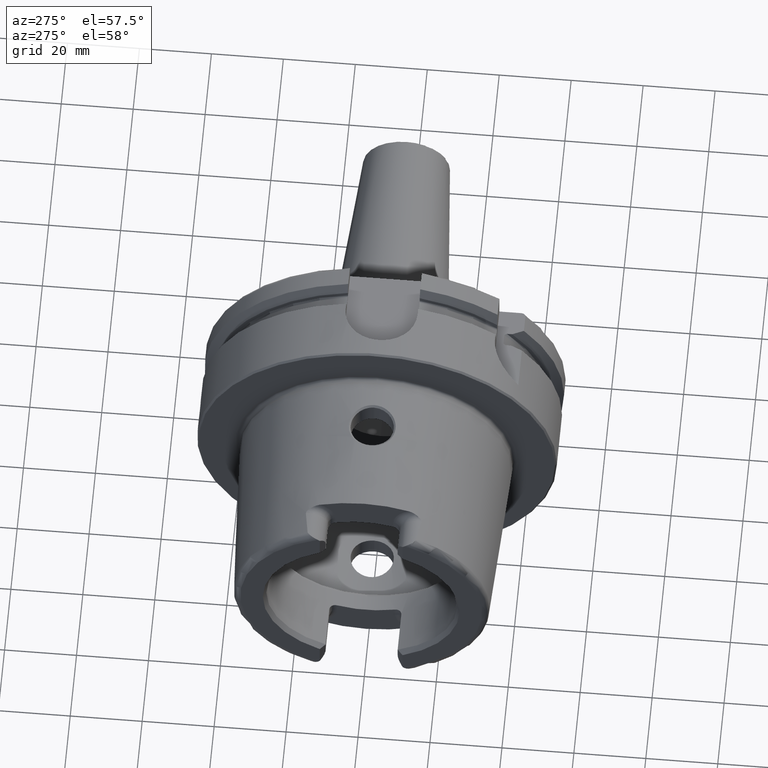
[diagram: clean part render]
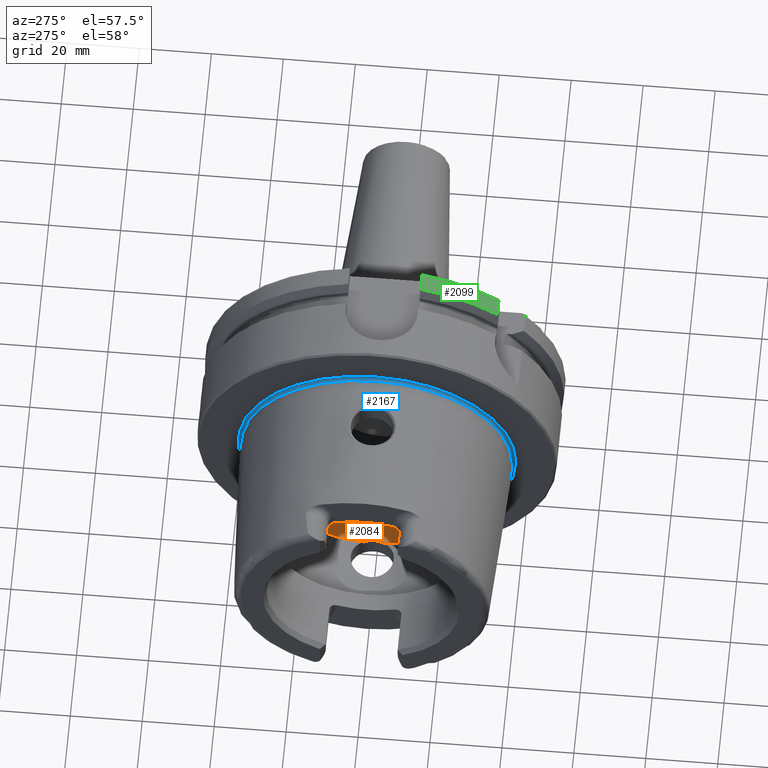
[diagram: same view with three faces highlighted in distinct colors, each labeled with its STEP entity id]
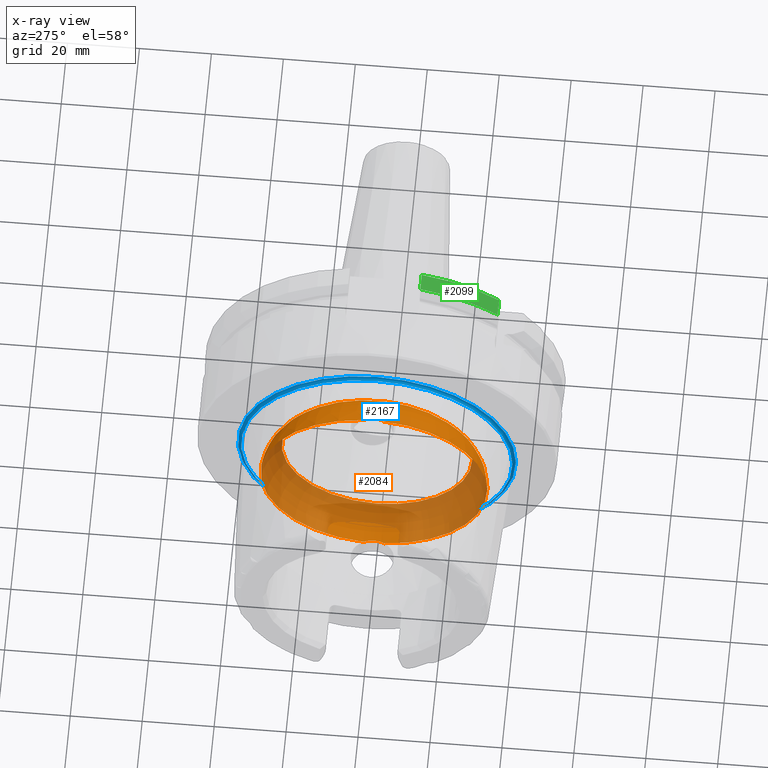
[diagram: x-ray of the same camera — body ghosted, the three highlighted faces saturated]
A machine part, auxiliary view with three faces highlighted in distinct colors.
The next image is the same camera in x-ray (body ghosted, the three faces saturated) — at least one of them is partly hidden behind the body in this view.
Their STEP definitions:

[orange] entity #2084 — the highlighted toroidal blend (fillet) surface has major radius 19.5 mm and minor (blend) radius 12 mm.
#48=B_SPLINE_CURVE_WITH_KNOTS('',3,(#3712,#3713,#3714,#3715,#3716,#3717,
#3718,#3719,#3720,#3721),.UNSPECIFIED.,.F.,.F.,(4,2,2,2,4),(-0.606113644645353,
-0.532141714710631,-0.407956541554012,-0.344441109025195,-0.303157612487306),
 .UNSPECIFIED.);
#50=B_SPLINE_CURVE_WITH_KNOTS('',3,(#3754,#3755,#3756,#3757,#3758,#3759,
#3760,#3761,#3762,#3763),.UNSPECIFIED.,.F.,.F.,(4,2,2,2,4),(-0.303157612487306,
-0.297161587155601,-0.247817233363509,-0.174446982686599,0.),
 .UNSPECIFIED.);
#53=B_SPLINE_CURVE_WITH_KNOTS('',3,(#3904,#3905,#3906,#3907,#3908,#3909,
#3910,#3911,#3912,#3913),.UNSPECIFIED.,.F.,.F.,(4,2,2,2,4),(-0.606113644645388,
-0.532141714710621,-0.407956541553997,-0.344441109025146,-0.303157612487227),
 .UNSPECIFIED.);
#55=B_SPLINE_CURVE_WITH_KNOTS('',3,(#3946,#3947,#3948,#3949,#3950,#3951,
#3952,#3953,#3954,#3955),.UNSPECIFIED.,.F.,.F.,(4,2,2,2,4),(-0.303157612487227,
-0.297161587155532,-0.247817233363497,-0.174446982686607,0.),
 .UNSPECIFIED.);
#143=TOROIDAL_SURFACE('',#2296,19.5,12.);
#254=FACE_OUTER_BOUND('',#387,.T.);
#387=EDGE_LOOP('',(#1587,#1588,#1589,#1590,#1591,#1592,#1593,#1594,#1595,
#1596,#1597));
#744=CIRCLE('',#2291,31.5);
#747=CIRCLE('',#2294,31.5);
#748=CIRCLE('',#2295,31.5);
#749=CIRCLE('',#2297,26.5);
#750=CIRCLE('',#2298,26.5);
#751=CIRCLE('',#2299,12.);
#925=VERTEX_POINT('',#3709);
#926=VERTEX_POINT('',#3711);
#927=VERTEX_POINT('',#3722);
#930=VERTEX_POINT('',#3902);
#931=VERTEX_POINT('',#3903);
#932=VERTEX_POINT('',#3914);
#933=VERTEX_POINT('',#3958);
#936=VERTEX_POINT('',#3968);
#937=VERTEX_POINT('',#3969);
#1168=EDGE_CURVE('',#926,#925,#48,.T.);
#1170=EDGE_CURVE('',#925,#927,#50,.T.);
#1174=EDGE_CURVE('',#930,#931,#53,.T.);
#1176=EDGE_CURVE('',#931,#932,#55,.T.);
#1178=EDGE_CURVE('',#933,#930,#744,.T.);
#1182=EDGE_CURVE('',#927,#933,#747,.T.);
#1183=EDGE_CURVE('',#932,#926,#748,.T.);
#1184=EDGE_CURVE('',#936,#937,#749,.T.);
#1185=EDGE_CURVE('',#937,#936,#750,.T.);
#1186=EDGE_CURVE('',#937,#925,#751,.T.);
#1587=ORIENTED_EDGE('',*,*,#1184,.F.);
#1588=ORIENTED_EDGE('',*,*,#1185,.F.);
#1589=ORIENTED_EDGE('',*,*,#1186,.T.);
#1590=ORIENTED_EDGE('',*,*,#1170,.T.);
#1591=ORIENTED_EDGE('',*,*,#1182,.T.);
#1592=ORIENTED_EDGE('',*,*,#1178,.T.);
#1593=ORIENTED_EDGE('',*,*,#1174,.T.);
#1594=ORIENTED_EDGE('',*,*,#1176,.T.);
#1595=ORIENTED_EDGE('',*,*,#1183,.T.);
#1596=ORIENTED_EDGE('',*,*,#1168,.T.);
#1597=ORIENTED_EDGE('',*,*,#1186,.F.);
#2084=ADVANCED_FACE('',(#254),#143,.F.);
#2291=AXIS2_PLACEMENT_3D('',#3959,#2709,#2710);
#2294=AXIS2_PLACEMENT_3D('',#3965,#2716,#2717);
#2295=AXIS2_PLACEMENT_3D('',#3966,#2718,#2719);
#2296=AXIS2_PLACEMENT_3D('',#3967,#2720,#2721);
#2297=AXIS2_PLACEMENT_3D('',#3970,#2722,#2723);
#2298=AXIS2_PLACEMENT_3D('',#3971,#2724,#2725);
#2299=AXIS2_PLACEMENT_3D('',#3972,#2726,#2727);
#2709=DIRECTION('center_axis',(-1.,0.,0.));
#2710=DIRECTION('ref_axis',(0.,0.,1.));
#2716=DIRECTION('center_axis',(-1.,0.,0.));
#2717=DIRECTION('ref_axis',(0.,0.,1.));
#2718=DIRECTION('center_axis',(-1.,0.,0.));
#2719=DIRECTION('ref_axis',(0.,0.,1.));
#2720=DIRECTION('center_axis',(-1.,0.,0.));
#2721=DIRECTION('ref_axis',(0.,0.,1.));
#2722=DIRECTION('center_axis',(-1.,0.,0.));
#2723=DIRECTION('ref_axis',(0.,0.,1.));
#2724=DIRECTION('center_axis',(-1.,0.,0.));
#2725=DIRECTION('ref_axis',(0.,0.,1.));
#2726=DIRECTION('center_axis',(0.,1.,-1.22464679914735E-16));
#2727=DIRECTION('ref_axis',(0.,-1.22464679914735E-16,-1.));
#3709=CARTESIAN_POINT('',(-9.,8.53116613017712E-16,-31.4767398822284));
#3711=CARTESIAN_POINT('',(-9.74679434480896,2.89893607109041,-31.3663222207471));
#3712=CARTESIAN_POINT('Ctrl Pts',(-9.74679434480898,2.89893607109041,-31.3663222207471));
#3713=CARTESIAN_POINT('Ctrl Pts',(-9.62803941549252,2.68373847757038,-31.3862111979079));
#3714=CARTESIAN_POINT('Ctrl Pts',(-9.52250794022164,2.46123932380009,-31.4027818190648));
#3715=CARTESIAN_POINT('Ctrl Pts',(-9.27707880675082,1.84905941644996,-31.4398086116956));
#3716=CARTESIAN_POINT('Ctrl Pts',(-9.16318715371328,1.45014848778478,-31.4552463037839));
#3717=CARTESIAN_POINT('Ctrl Pts',(-9.05448554629564,0.83406948853474,-31.4697090180031));
#3718=CARTESIAN_POINT('Ctrl Pts',(-9.02875508102837,0.623753972628784,-31.4730355369691));
#3719=CARTESIAN_POINT('Ctrl Pts',(-9.00473516300901,0.275210595137741,-31.4761342948647));
#3720=CARTESIAN_POINT('Ctrl Pts',(-9.,0.13762179988616,-31.4767398822284));
#3721=CARTESIAN_POINT('Ctrl Pts',(-9.,9.71445146547012E-16,-31.4767398822284));
#3722=CARTESIAN_POINT('',(-9.74679434480896,-2.89893607109041,-31.3663222207471));
#3754=CARTESIAN_POINT('Ctrl Pts',(-9.,9.83483832277069E-16,-31.4767398822284));
#3755=CARTESIAN_POINT('Ctrl Pts',(-9.,-0.0199882245331354,-31.4767398822284));
#3756=CARTESIAN_POINT('Ctrl Pts',(-9.00009988237686,-0.0399771452902417,
-31.4767270717783));
#3757=CARTESIAN_POINT('Ctrl Pts',(-9.00194380057016,-0.224464346212316,
-31.4764905359115));
#3758=CARTESIAN_POINT('Ctrl Pts',(-9.01035297969853,-0.388827878343727,
-31.4754151841588));
#3759=CARTESIAN_POINT('Ctrl Pts',(-9.0480310904853,-0.796171644009328,-31.4705320701686));
#3760=CARTESIAN_POINT('Ctrl Pts',(-9.08543037238412,-1.03809779370842,-31.4656619259797));
#3761=CARTESIAN_POINT('Ctrl Pts',(-9.26119500081336,-1.84501079512327,-31.441850680052));
#3762=CARTESIAN_POINT('Ctrl Pts',(-9.4667592962906,-2.39148034786879,-31.4132222586341));
#3763=CARTESIAN_POINT('Ctrl Pts',(-9.74679434480898,-2.89893607109041,-31.3663222207471));
#3902=CARTESIAN_POINT('',(-9.74679434480896,-2.89893607109042,31.3663222207471));
#3903=CARTESIAN_POINT('',(-8.99999999999999,7.8372767397864E-16,31.4767398822284));
#3904=CARTESIAN_POINT('Ctrl Pts',(-9.74679434480898,-2.89893607109042,31.3663222207471));
#3905=CARTESIAN_POINT('Ctrl Pts',(-9.62803941549257,-2.6837384775705,31.3862111979079));
#3906=CARTESIAN_POINT('Ctrl Pts',(-9.52250794022172,-2.46123932380032,31.4027818190648));
#3907=CARTESIAN_POINT('Ctrl Pts',(-9.27707880675083,-1.84905941645004,31.4398086116956));
#3908=CARTESIAN_POINT('Ctrl Pts',(-9.16318715371328,-1.45014848778485,31.4552463037839));
#3909=CARTESIAN_POINT('Ctrl Pts',(-9.05448554629561,-0.834069488534672,
31.4697090180031));
#3910=CARTESIAN_POINT('Ctrl Pts',(-9.02875508102836,-0.623753972628598,
31.4730355369691));
#3911=CARTESIAN_POINT('Ctrl Pts',(-9.00473516300902,-0.275210595137865,
31.4761342948647));
#3912=CARTESIAN_POINT('Ctrl Pts',(-8.99999999999999,-0.137621799886392,
31.4767398822284));
#3913=CARTESIAN_POINT('Ctrl Pts',(-8.99999999999999,9.0205620750794E-16,
31.4767398822284));
#3914=CARTESIAN_POINT('',(-9.74679434480896,2.89893607109042,31.3663222207471));
#3946=CARTESIAN_POINT('Ctrl Pts',(-8.99999999999999,8.7920239009422E-16,
31.4767398822284));
#3947=CARTESIAN_POINT('Ctrl Pts',(-8.99999999999999,0.0199882245331231,
31.4767398822284));
#3948=CARTESIAN_POINT('Ctrl Pts',(-9.00009988237684,0.0399771452902225,
31.4767270717783));
#3949=CARTESIAN_POINT('Ctrl Pts',(-9.00194380057014,0.224464346212396,31.4764905359115));
#3950=CARTESIAN_POINT('Ctrl Pts',(-9.01035297969852,0.388827878343765,31.4754151841588));
#3951=CARTESIAN_POINT('Ctrl Pts',(-9.0480310904853,0.79617164400948,31.4705320701686));
#3952=CARTESIAN_POINT('Ctrl Pts',(-9.08543037238414,1.03809779370849,31.4656619259797));
#3953=CARTESIAN_POINT('Ctrl Pts',(-9.26119500081334,1.84501079512323,31.441850680052));
#3954=CARTESIAN_POINT('Ctrl Pts',(-9.46675929629059,2.39148034786878,31.4132222586341));
#3955=CARTESIAN_POINT('Ctrl Pts',(-9.74679434480898,2.89893607109043,31.3663222207471));
#3958=CARTESIAN_POINT('',(-9.74679434480896,-31.5,3.85763741731416E-15));
#3959=CARTESIAN_POINT('Origin',(-9.74679434480896,0.,0.));
#3965=CARTESIAN_POINT('Origin',(-9.74679434480896,0.,0.));
#3966=CARTESIAN_POINT('Origin',(-9.74679434480896,0.,0.));
#3967=CARTESIAN_POINT('Origin',(-9.74679434480896,0.,0.));
#3968=CARTESIAN_POINT('',(0.,-26.5,3.24531401774049E-15));
#3969=CARTESIAN_POINT('',(0.,-3.24531401774049E-15,-26.5));
#3970=CARTESIAN_POINT('Origin',(0.,0.,0.));
#3971=CARTESIAN_POINT('Origin',(0.,0.,0.));
#3972=CARTESIAN_POINT('Origin',(-9.74679434480896,-2.38806125833734E-15,
-19.5));

[blue] entity #2167 — the highlighted toroidal blend (fillet) surface has major radius 38.5073 mm and minor (blend) radius 0.8 mm.
#165=TOROIDAL_SURFACE('',#2462,38.5073016032064,0.8);
#337=FACE_OUTER_BOUND('',#475,.T.);
#475=EDGE_LOOP('',(#2021,#2022,#2023,#2024,#2025,#2026));
#819=CIRCLE('',#2438,38.6186400839745);
#820=CIRCLE('',#2439,38.6186400839745);
#830=CIRCLE('',#2460,37.7073016032064);
#831=CIRCLE('',#2461,37.7073016032064);
#832=CIRCLE('',#2463,0.8);
#1039=VERTEX_POINT('',#4626);
#1040=VERTEX_POINT('',#4627);
#1044=VERTEX_POINT('',#4656);
#1045=VERTEX_POINT('',#4657);
#1355=EDGE_CURVE('',#1039,#1040,#819,.T.);
#1356=EDGE_CURVE('',#1040,#1039,#820,.T.);
#1369=EDGE_CURVE('',#1044,#1045,#830,.T.);
#1371=EDGE_CURVE('',#1045,#1044,#831,.T.);
#1372=EDGE_CURVE('',#1045,#1040,#832,.T.);
#2021=ORIENTED_EDGE('',*,*,#1369,.T.);
#2022=ORIENTED_EDGE('',*,*,#1372,.T.);
#2023=ORIENTED_EDGE('',*,*,#1355,.F.);
#2024=ORIENTED_EDGE('',*,*,#1356,.F.);
#2025=ORIENTED_EDGE('',*,*,#1372,.F.);
#2026=ORIENTED_EDGE('',*,*,#1371,.T.);
#2167=ADVANCED_FACE('',(#337),#165,.F.);
#2438=AXIS2_PLACEMENT_3D('',#4628,#3064,#3065);
#2439=AXIS2_PLACEMENT_3D('',#4629,#3066,#3067);
#2460=AXIS2_PLACEMENT_3D('',#4658,#3111,#3112);
#2461=AXIS2_PLACEMENT_3D('',#4660,#3114,#3115);
#2462=AXIS2_PLACEMENT_3D('',#4661,#3116,#3117);
#2463=AXIS2_PLACEMENT_3D('',#4662,#3118,#3119);
#3064=DIRECTION('center_axis',(1.,0.,0.));
#3065=DIRECTION('ref_axis',(0.,0.,-1.));
#3066=DIRECTION('center_axis',(1.,0.,0.));
#3067=DIRECTION('ref_axis',(0.,0.,-1.));
#3111=DIRECTION('center_axis',(1.,0.,0.));
#3112=DIRECTION('ref_axis',(0.,0.,-1.));
#3114=DIRECTION('center_axis',(1.,0.,0.));
#3115=DIRECTION('ref_axis',(0.,0.,-1.));
#3116=DIRECTION('center_axis',(1.,0.,0.));
#3117=DIRECTION('ref_axis',(0.,0.,-1.));
#3118=DIRECTION('center_axis',(0.,-1.,-1.22464679914735E-16));
#3119=DIRECTION('ref_axis',(0.,-1.22464679914735E-16,1.));
#4626=CARTESIAN_POINT('',(0.0922144549932558,-38.6186400839745,-4.7294193966263E-15));
#4627=CARTESIAN_POINT('',(0.0922144549932559,-4.7294193966263E-15,38.6186400839745));
#4628=CARTESIAN_POINT('Origin',(0.0922144549932559,0.,0.));
#4629=CARTESIAN_POINT('Origin',(0.0922144549932559,0.,0.));
#4656=CARTESIAN_POINT('',(-0.7,-37.7073016032064,-4.61781262128506E-15));
#4657=CARTESIAN_POINT('',(-0.7,-4.61781262128506E-15,37.7073016032064));
#4658=CARTESIAN_POINT('Origin',(-0.7,0.,0.));
#4660=CARTESIAN_POINT('Origin',(-0.7,0.,0.));
#4661=CARTESIAN_POINT('Origin',(-0.7,0.,0.));
#4662=CARTESIAN_POINT('Origin',(-0.7,-4.71578436521685E-15,38.5073016032064));

[green] entity #2099 — the highlighted cylindrical surface (partial cylindrical patch) has radius 50 mm, axis along (1, 0, 0).
#194=CYLINDRICAL_SURFACE('',#2332,50.);
#269=FACE_OUTER_BOUND('',#403,.T.);
#403=EDGE_LOOP('',(#1687,#1688,#1689,#1690));
#524=LINE('',#4056,#632);
#541=LINE('',#4258,#649);
#632=VECTOR('',#2752,10.);
#649=VECTOR('',#2817,10.);
#769=CIRCLE('',#2331,50.);
#770=CIRCLE('',#2333,50.);
#947=VERTEX_POINT('',#4044);
#948=VERTEX_POINT('',#4055);
#982=VERTEX_POINT('',#4250);
#983=VERTEX_POINT('',#4256);
#1200=EDGE_CURVE('',#948,#947,#524,.T.);
#1244=EDGE_CURVE('',#982,#948,#769,.T.);
#1246=EDGE_CURVE('',#983,#947,#770,.T.);
#1247=EDGE_CURVE('',#983,#982,#541,.T.);
#1687=ORIENTED_EDGE('',*,*,#1200,.T.);
#1688=ORIENTED_EDGE('',*,*,#1246,.F.);
#1689=ORIENTED_EDGE('',*,*,#1247,.T.);
#1690=ORIENTED_EDGE('',*,*,#1244,.T.);
#2099=ADVANCED_FACE('',(#269),#194,.T.);
#2331=AXIS2_PLACEMENT_3D('',#4251,#2811,#2812);
#2332=AXIS2_PLACEMENT_3D('',#4255,#2813,#2814);
#2333=AXIS2_PLACEMENT_3D('',#4257,#2815,#2816);
#2752=DIRECTION('',(1.,0.,0.));
#2811=DIRECTION('center_axis',(1.,0.,0.));
#2812=DIRECTION('ref_axis',(0.,0.,-1.));
#2813=DIRECTION('center_axis',(1.,0.,0.));
#2814=DIRECTION('ref_axis',(0.,1.,0.));
#2815=DIRECTION('center_axis',(1.,0.,0.));
#2816=DIRECTION('ref_axis',(0.,0.,-1.));
#2817=DIRECTION('',(-1.,0.,0.));
#4044=CARTESIAN_POINT('',(28.,-31.5,38.8297566307078));
#4055=CARTESIAN_POINT('',(23.2620290209214,-31.5,38.8297566307078));
#4056=CARTESIAN_POINT('',(25.6310145104607,-31.5,38.8297566307078));
#4250=CARTESIAN_POINT('',(23.2620290209214,-10.,48.9897948556636));
#4251=CARTESIAN_POINT('Origin',(23.2620290209214,0.,0.));
#4255=CARTESIAN_POINT('Origin',(25.6310145104607,0.,0.));
#4256=CARTESIAN_POINT('',(28.,-10.,48.9897948556636));
#4257=CARTESIAN_POINT('Origin',(28.,0.,0.));
#4258=CARTESIAN_POINT('',(25.6310145104607,-10.,48.9897948556636));